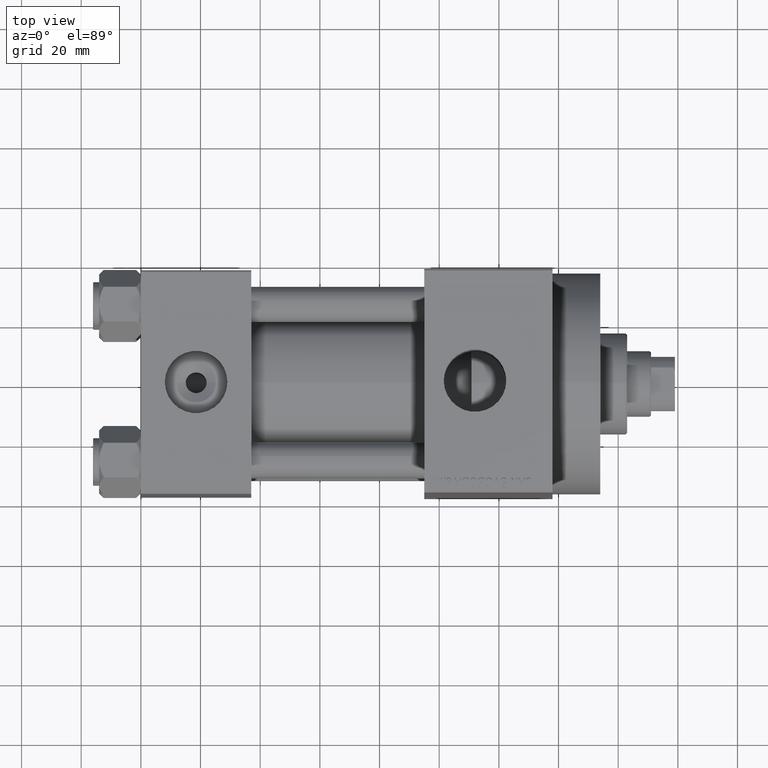
[diagram: clean part render]
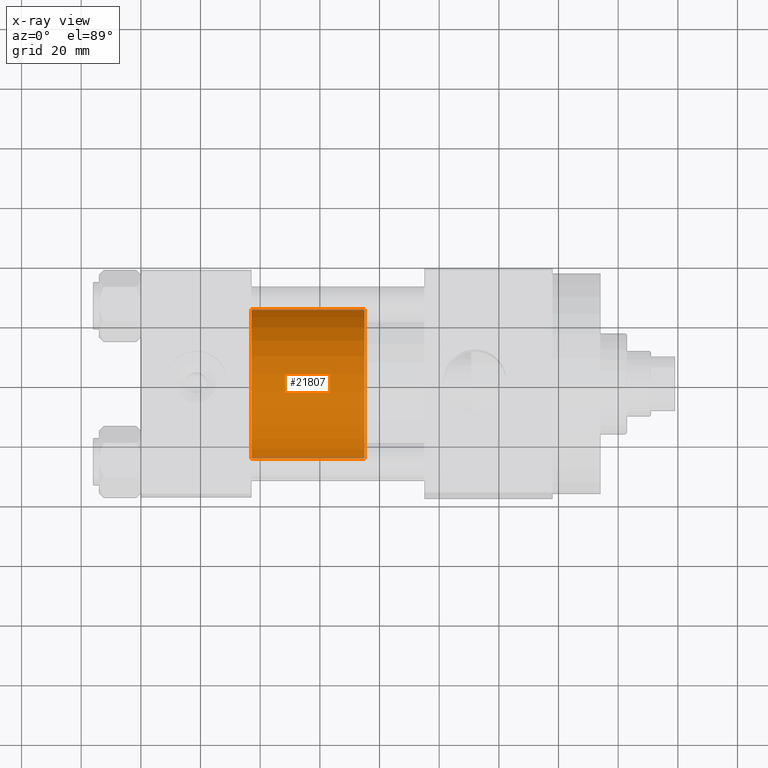
[diagram: x-ray — body ghosted, one internal face saturated and labeled with its STEP entity id]
A machine part, top view, then the same camera in x-ray: the body is ghosted and one INTERNAL B-rep face — a face not visible from any outside direction — is saturated and labeled: STEP entity #21807.
In plain terms, the highlighted cylindrical surface (partial cylindrical patch) has radius 25 mm, axis along (-1, 0, 0).
Its self-contained STEP definition (entity closure, byte-faithful):
#2663 = CIRCLE ( 'NONE', #29335, 25.00000000000000000 ) ;
#4895 = VECTOR ( 'NONE', #43478, 1000.000000000000000 ) ;
#5456 = CARTESIAN_POINT ( 'NONE',  ( 25.00000000000000000, 3.061616997868383043E-15, 38.00000000000000000 ) ) ;
#6274 = ORIENTED_EDGE ( 'NONE', *, *, #43045, .F. ) ;
#6361 = CARTESIAN_POINT ( 'NONE',  ( -25.00000000000000000, 0.000000000000000000, 0.000000000000000000 ) ) ;
#6924 = ORIENTED_EDGE ( 'NONE', *, *, #11078, .T. ) ;
#8971 = EDGE_CURVE ( 'NONE', #32880, #16136, #22467, .T. ) ;
#11078 = EDGE_CURVE ( 'NONE', #16136, #39666, #2663, .T. ) ;
#11443 = DIRECTION ( 'NONE',  ( 0.000000000000000000, 0.000000000000000000, 1.000000000000000000 ) ) ;
#13078 = DIRECTION ( 'NONE',  ( -0.000000000000000000, -0.000000000000000000, -1.000000000000000000 ) ) ;
#14379 = ORIENTED_EDGE ( 'NONE', *, *, #21053, .F. ) ;
#15078 = VECTOR ( 'NONE', #23942, 1000.000000000000000 ) ;
#16086 = LINE ( 'NONE', #23483, #15078 ) ;
#16136 = VERTEX_POINT ( 'NONE', #6361 ) ;
#18378 = CARTESIAN_POINT ( 'NONE',  ( 0.000000000000000000, 0.000000000000000000, 0.000000000000000000 ) ) ;
#21053 = EDGE_CURVE ( 'NONE', #47012, #39666, #16086, .T. ) ;
#21807 = ADVANCED_FACE ( 'NONE', ( #35268 ), #31444, .T. ) ;
#22467 = LINE ( 'NONE', #40364, #4895 ) ;
#23483 = CARTESIAN_POINT ( 'NONE',  ( 25.00000000000000000, 3.061616997868383043E-15, 38.00000000000000000 ) ) ;
#23807 = ORIENTED_EDGE ( 'NONE', *, *, #8971, .T. ) ;
#23942 = DIRECTION ( 'NONE',  ( -0.000000000000000000, -0.000000000000000000, -1.000000000000000000 ) ) ;
#25287 = DIRECTION ( 'NONE',  ( 1.000000000000000000, 0.000000000000000000, 0.000000000000000000 ) ) ;
#28633 = CARTESIAN_POINT ( 'NONE',  ( -25.00000000000000000, 0.000000000000000000, 38.00000000000000000 ) ) ;
#29335 = AXIS2_PLACEMENT_3D ( 'NONE', #18378, #11443, #25287 ) ;
#31444 = CYLINDRICAL_SURFACE ( 'NONE', #36457, 25.00000000000000000 ) ;
#32341 = CARTESIAN_POINT ( 'NONE',  ( 0.000000000000000000, 0.000000000000000000, 38.00000000000000000 ) ) ;
#32880 = VERTEX_POINT ( 'NONE', #28633 ) ;
#34015 = DIRECTION ( 'NONE',  ( 1.000000000000000000, 0.000000000000000000, 0.000000000000000000 ) ) ;
#35268 = FACE_OUTER_BOUND ( 'NONE', #38616, .T. ) ;
#36312 = AXIS2_PLACEMENT_3D ( 'NONE', #32341, #46917, #34015 ) ;
#36457 = AXIS2_PLACEMENT_3D ( 'NONE', #42207, #13078, #42438 ) ;
#38616 = EDGE_LOOP ( 'NONE', ( #14379, #6274, #23807, #6924 ) ) ;
#39666 = VERTEX_POINT ( 'NONE', #43241 ) ;
#40364 = CARTESIAN_POINT ( 'NONE',  ( -25.00000000000000000, 0.000000000000000000, 38.00000000000000000 ) ) ;
#42207 = CARTESIAN_POINT ( 'NONE',  ( 0.000000000000000000, 0.000000000000000000, 38.00000000000000000 ) ) ;
#42438 = DIRECTION ( 'NONE',  ( -1.000000000000000000, 0.000000000000000000, 0.000000000000000000 ) ) ;
#43045 = EDGE_CURVE ( 'NONE', #32880, #47012, #43160, .T. ) ;
#43160 = CIRCLE ( 'NONE', #36312, 25.00000000000000000 ) ;
#43241 = CARTESIAN_POINT ( 'NONE',  ( 25.00000000000000000, 3.061616997868383043E-15, 0.000000000000000000 ) ) ;
#43478 = DIRECTION ( 'NONE',  ( -0.000000000000000000, -0.000000000000000000, -1.000000000000000000 ) ) ;
#46917 = DIRECTION ( 'NONE',  ( 0.000000000000000000, 0.000000000000000000, 1.000000000000000000 ) ) ;
#47012 = VERTEX_POINT ( 'NONE', #5456 ) ;